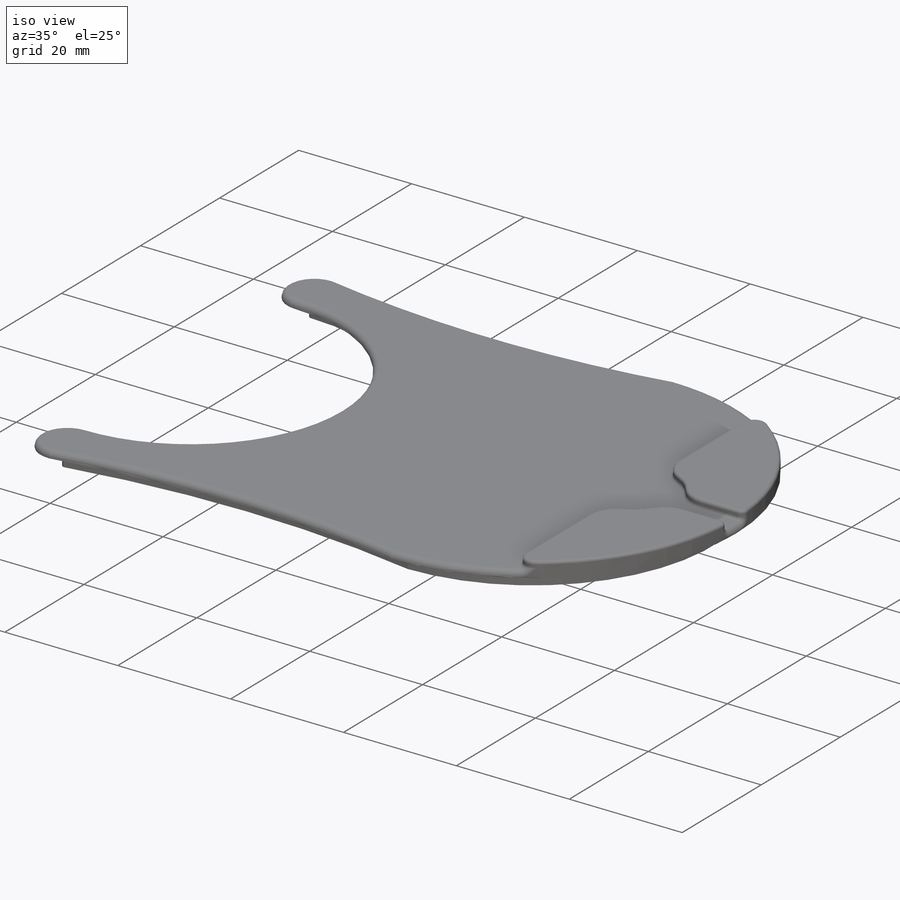
[diagram: iso view]
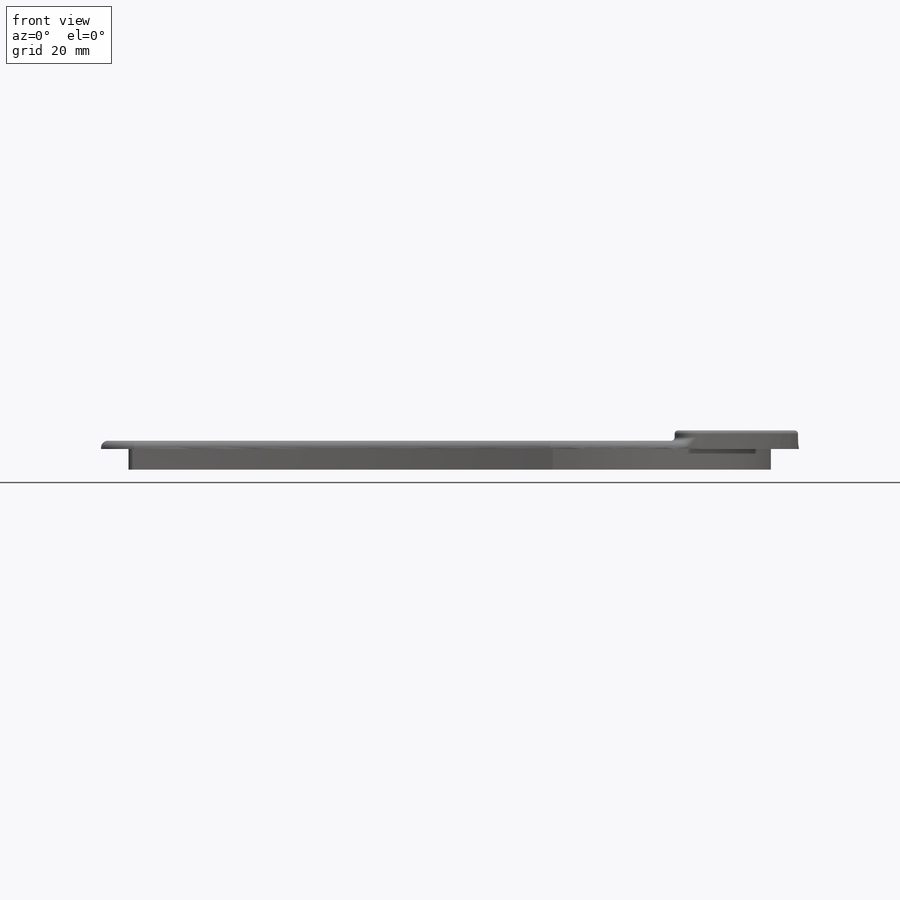
[diagram: front view]
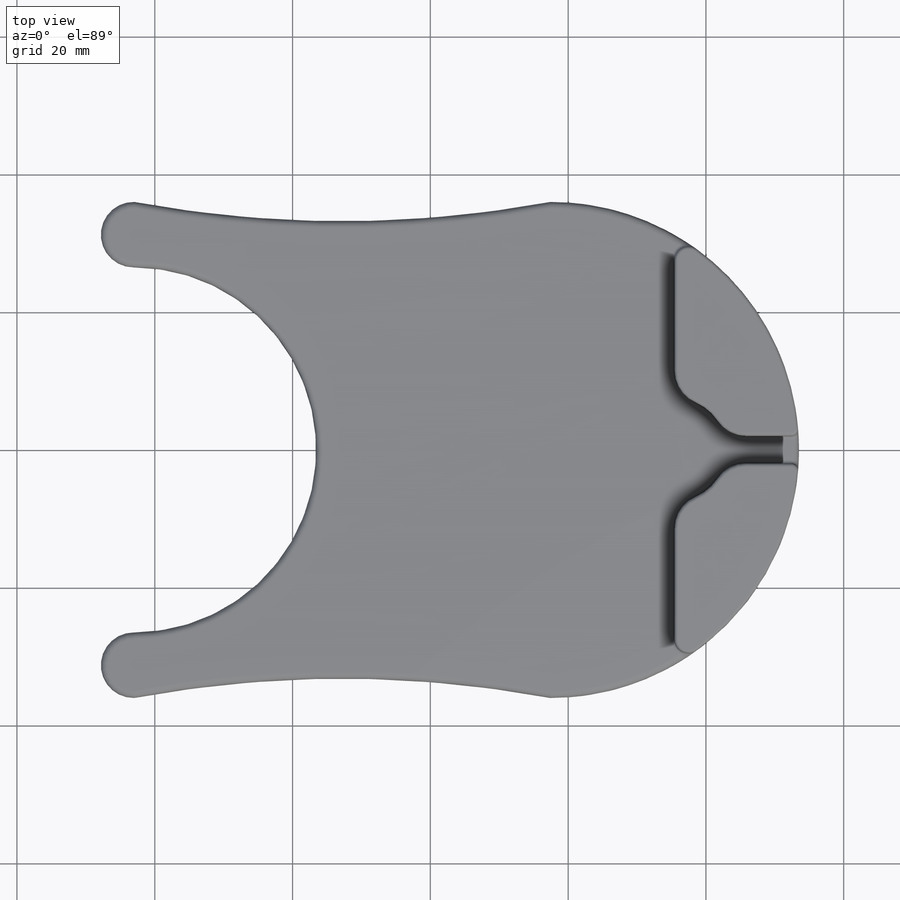
[diagram: top view]
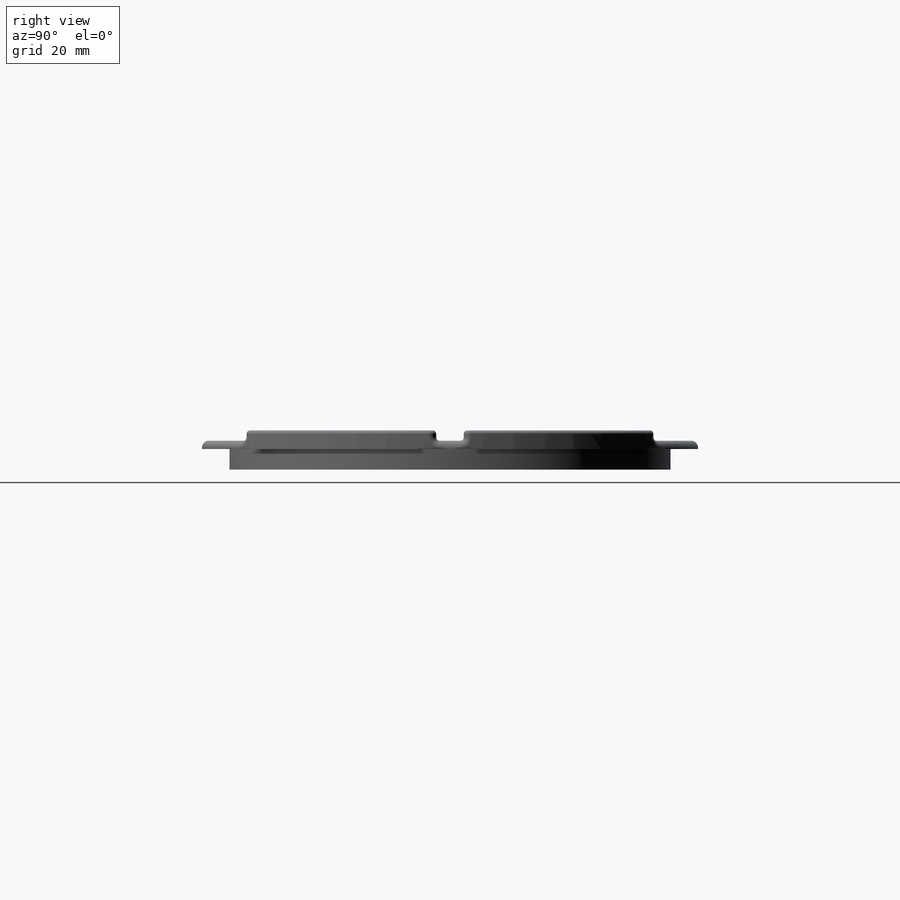
[diagram: right view]
SOLIDWORKS PART (.sldprt)
format: sldprt  version: not decoded by parser v0  size: 530,432 bytes
history: native  units: mm
features: sketch x10, extrude x6, cut_extrude x4, plane x3, fillet x3, material x1, shell x1 (+10 scaffold rows collapsed)
feature tree (38):
  scaffold x10  (default folders/planes/origin — collapsed)
  material  "Material <sin especificar>"
  plane  "Alzado"
  plane  "Planta"
  plane  "Vista lateral"
  sketch  "Croquis1"  dims[D3=55.0mm D4=165.0mm D1=130.0mm D2=70.0mm]
  extrude  "Saliente-Extruir1"  Depth=25mm
  shell  "Vaciado3"  Thickness=2mm
  sketch  "Croquis5"
  cut_extrude  "Cortar-Extruir1"  Depth=5mm
  sketch  "Croquis6"
  extrude  "Saliente-Extruir4"  Depth=3mm
  sketch  "Croquis7"  dims[D1=5.0mm]
  extrude  "Saliente-Extruir5"  Depth=25mm
  sketch  "Croquis8"  dims[D1=0.0mm]
  cut_extrude  "Cortar-Extruir2"  Depth=12.5mm
  sketch  "Croquis9"  dims[D1=5.0mm]
  cut_extrude  "Cortar-Extruir3"  Depth=12.5mm
  sketch  "Croquis10"  dims[D1=1.0mm]
  extrude  "Saliente-Extruir6"  Depth=3mm
  sketch  "Croquis11"  dims[D1=4.0mm]
  extrude  "Saliente-Extruir7"  Depth=1.2mm
  sketch  "Croquis12"  dims[c1.D1=15.0mm c1.D4=5.0mm c1.D5=2.0mm c2.D1=10.0mm c2.D2=2.0mm c2.D3=2.0mm]
  extrude  "Saliente-Extruir8"  Depth=1.5mm
  fillet  "Redondeo2"  Radius=0.5mm
  fillet  "Redondeo3"  Radius=1mm
  sketch  "Croquis13"  dims[D1=50.0mm]
  cut_extrude  "Cortar-Extruir4"  Depth=4mm
  fillet  "Redondeo4"  Radius=1mm
decode coverage: 22 of 24 modeling features carry decoded parameters
note: suppression state not decoded; provenance and decode notes live in map.json
